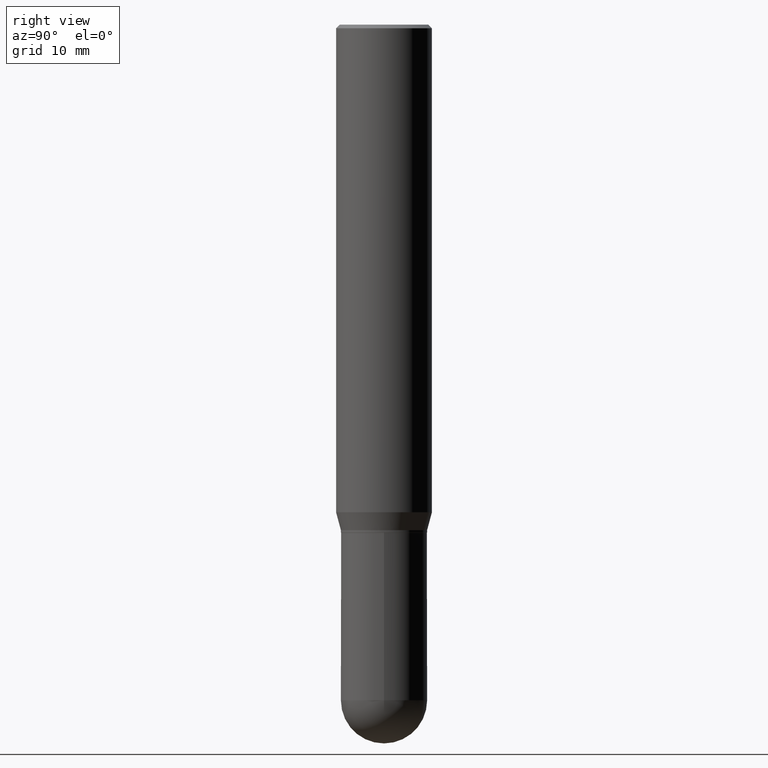
[diagram: clean part render]
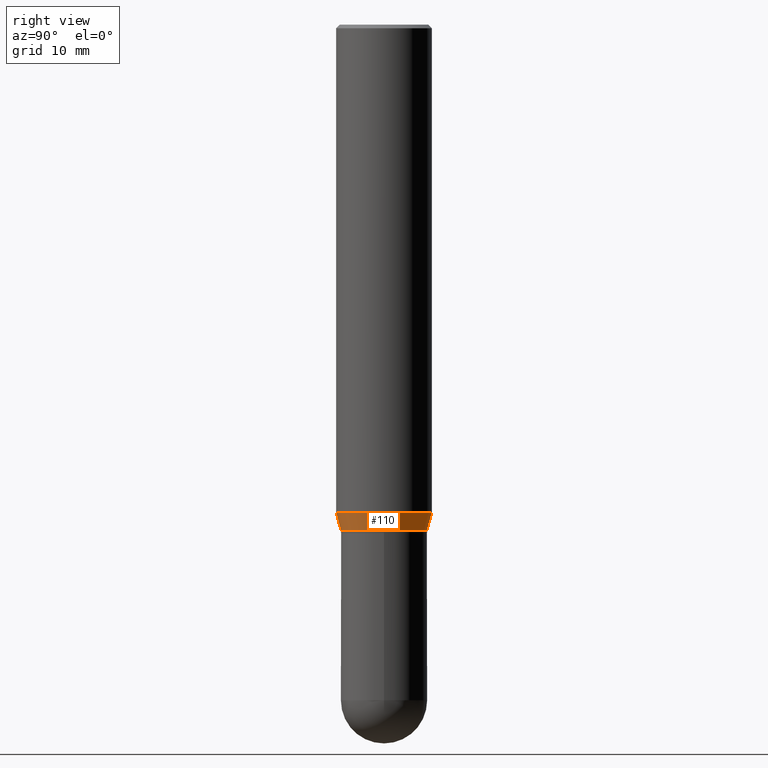
[diagram: same view with one face highlighted and labeled with its STEP entity id]
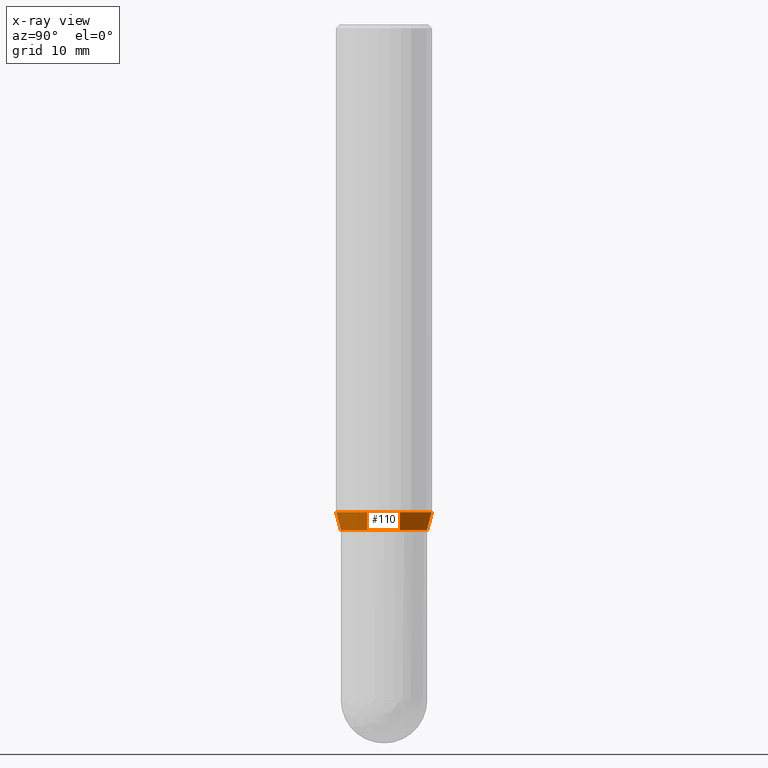
[diagram: x-ray of the same camera — body ghosted, the highlighted face saturated]
A machine part, right view. The second image highlights one B-rep face of the part: STEP entity #110.
The next image is the same camera in x-ray: the body ghosted, the highlighted face saturated — about 0% of this face is hidden behind the body in this view.
In plain terms, the highlighted conical surface has half-angle 15 deg.
Its self-contained STEP definition (entity closure, byte-faithful):
#4 = LINE ( 'NONE', #173, #301 ) ;
#11 = CARTESIAN_POINT ( 'NONE',  ( 1.328714915871437240E-15, 0.1771499999999927855, -2.076700000000000657 ) ) ;
#34 = CARTESIAN_POINT ( 'NONE',  ( 5.079314278465484950E-29, -7.249600463515981474E-15, -2.076700000000000212 ) ) ;
#36 = DIRECTION ( 'NONE',  ( -2.445858467022432184E-29, 3.490923322346020788E-15, 1.000000000000000000 ) ) ;
#38 = DIRECTION ( 'NONE',  ( -6.982962677686265922E-15, -1.000000000000000000, 4.163344669033675634E-15 ) ) ;
#72 = EDGE_CURVE ( 'NONE', #297, #156, #390, .T. ) ;
#75 = EDGE_CURVE ( 'NONE', #275, #156, #327, .T. ) ;
#80 = DIRECTION ( 'NONE',  ( 1.839019923739597554E-15, 0.2588190451025245697, 0.9659258262890670910 ) ) ;
#84 = CONICAL_SURFACE ( 'NONE', #158, 0.1771500000000000019, 0.2617993877991499074 ) ;
#110 = ADVANCED_FACE ( 'NONE', ( #480 ), #84, .T. ) ;
#130 = CARTESIAN_POINT ( 'NONE',  ( -1.237031838352071315E-15, -0.1771500000000072461, -2.076699999999999768 ) ) ;
#151 = ORIENTED_EDGE ( 'NONE', *, *, #75, .F. ) ;
#156 = VERTEX_POINT ( 'NONE', #324 ) ;
#158 = AXIS2_PLACEMENT_3D ( 'NONE', #34, #509, #243 ) ;
#172 = AXIS2_PLACEMENT_3D ( 'NONE', #285, #36, #38 ) ;
#173 = CARTESIAN_POINT ( 'NONE',  ( -1.237031838352071315E-15, -0.1771500000000072461, -2.076699999999999768 ) ) ;
#209 = VERTEX_POINT ( 'NONE', #130 ) ;
#243 = DIRECTION ( 'NONE',  ( -6.982962677686265922E-15, -1.000000000000000000, 3.084220145260246224E-15 ) ) ;
#249 = CARTESIAN_POINT ( 'NONE',  ( 1.258726456399067980E-15, 0.1771499999999927855, -2.076700000000000657 ) ) ;
#253 = ORIENTED_EDGE ( 'NONE', *, *, #452, .T. ) ;
#275 = VERTEX_POINT ( 'NONE', #451 ) ;
#285 = CARTESIAN_POINT ( 'NONE',  ( 4.899491337544596904E-29, -6.992942890390830746E-15, -2.003178599090893464 ) ) ;
#297 = VERTEX_POINT ( 'NONE', #11 ) ;
#301 = VECTOR ( 'NONE', #494, 39.37007874015748143 ) ;
#319 = AXIS2_PLACEMENT_3D ( 'NONE', #470, #351, #501 ) ;
#324 = CARTESIAN_POINT ( 'NONE',  ( 1.398703375343805514E-15, 0.1968499999999929750, -2.003178599090894352 ) ) ;
#327 = CIRCLE ( 'NONE', #172, 0.1968499999999999694 ) ;
#328 = CIRCLE ( 'NONE', #319, 0.1771500000000000019 ) ;
#341 = ORIENTED_EDGE ( 'NONE', *, *, #72, .T. ) ;
#350 = EDGE_LOOP ( 'NONE', ( #253, #341, #151, #361 ) ) ;
#351 = DIRECTION ( 'NONE',  ( -2.445858467022432184E-29, 3.490923322346020788E-15, 1.000000000000000000 ) ) ;
#361 = ORIENTED_EDGE ( 'NONE', *, *, #371, .F. ) ;
#371 = EDGE_CURVE ( 'NONE', #209, #275, #4, .T. ) ;
#390 = LINE ( 'NONE', #249, #414 ) ;
#414 = VECTOR ( 'NONE', #80, 39.37007874015748854 ) ;
#451 = CARTESIAN_POINT ( 'NONE',  ( -1.374596203102492502E-15, -0.1968500000000069916, -2.003178599090893020 ) ) ;
#452 = EDGE_CURVE ( 'NONE', #209, #297, #328, .T. ) ;
#470 = CARTESIAN_POINT ( 'NONE',  ( 5.079314278465484950E-29, -7.249600463515981474E-15, -2.076700000000000212 ) ) ;
#480 = FACE_OUTER_BOUND ( 'NONE', #350, .T. ) ;
#494 = DIRECTION ( 'NONE',  ( -1.807323732225327773E-15, -0.2588190451025178529, 0.9659258262890690894 ) ) ;
#501 = DIRECTION ( 'NONE',  ( -6.982962677686265922E-15, -1.000000000000000000, 3.084220145260246224E-15 ) ) ;
#509 = DIRECTION ( 'NONE',  ( -2.445858467022432184E-29, 3.490923322346020788E-15, 1.000000000000000000 ) ) ;